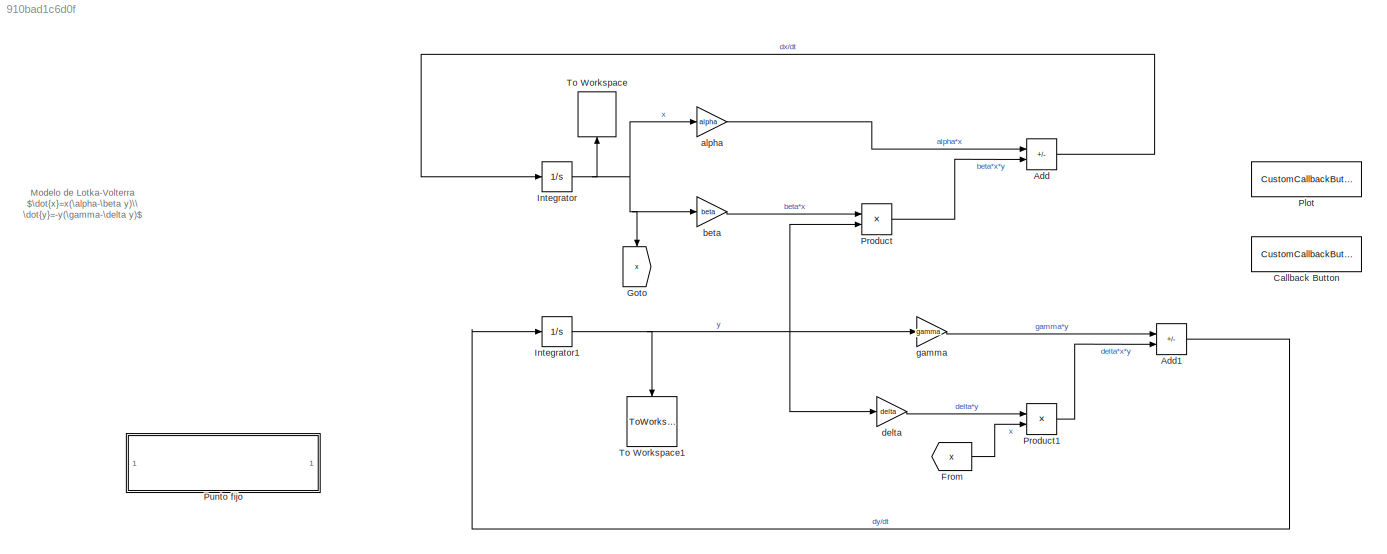
MODEL slx_910bad1c6d0f
KIND model
CONFIG AbsTol = auto
CONFIG EnableMultiTasking = off
CONFIG FixedStep = 0.01
CONFIG MaxStep = auto
CONFIG MinStep = auto
CONFIG RelTol = 1e-3
CONFIG SampleTimeConstraint = Unconstrained
CONFIG SolverName = ode4
CONFIG StartTime = 0.0
CONFIG StopTime = 50.0
WORKSPACE source: MATLAB code (in-file)
WORKSPACE alpha = 1
WORKSPACE beta = 1
WORKSPACE gamma = 1
WORKSPACE delta = 1
BLOCK [Sum] Add
  IconShape = rectangular
  Inputs = +-
BLOCK [Sum] Add1
  IconShape = rectangular
  Inputs = -+
BLOCK [CustomCallbackButton] Callback Button
  Configuration = {"components":[{"name":"BackgroundImageComponent","settings":{"image":{"size":[0,0],"src":"default","srcOrientation":"Right"},"position":[0,0,1,1]}},{"name":"ButtonStateComponent","settings":{"buttonType":"momentary","clickFcn":"x = out.x;\ny = out.y;\nt = out.tout;\n\nfigure\nplot(t, x, 'linewidth', 2)\nhold on\ngrid on\nplot(t, y, 'linewidth', 2)\nxlabel('Tiempo')\nylabel('Población')\nlegend('x...<+2236ch>
  CustomBackgroundColor = {"color":[0.9568627451,0.9568627451,0.9568627451],"show":true}
BLOCK [From] From
  GotoTag = x
BLOCK [Goto] Goto
  GotoTag = x
  NameLocation = left
BLOCK [Integrator] Integrator
  InitialCondition = linspace(0,2,10)
BLOCK [Integrator] Integrator1
  InitialCondition = 0.2
BLOCK [CustomCallbackButton] Plot
  Configuration = {"components":[{"name":"BackgroundImageComponent","settings":{"image":{"size":[0,0],"src":"default","srcOrientation":"Right"},"position":[0,0,1,1]}},{"name":"ButtonStateComponent","settings":{"buttonType":"momentary","clickFcn":"x = out.x;\ny = out.y;\nx_centro = out.x_centro;\ny_centro = out.y_centro;\n\n% Trayectorias en el espacio de fases\nfigure\nplot(x, y, 'linewidth', 2)\nhold on\n\n% Ubica...<+2409ch>
  CustomBackgroundColor = {"color":[0.9568627451,0.9568627451,0.9568627451],"show":true}
BLOCK [Product] Product
BLOCK [Product] Product1
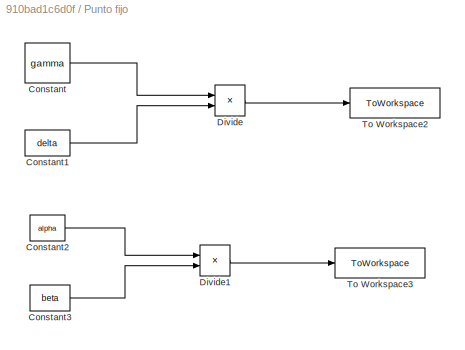
BLOCK [SubSystem] Punto fijo
BLOCK [Constant] Punto fijo/Constant
  Value = gamma
BLOCK [Constant] Punto fijo/Constant1
  Value = delta
BLOCK [Constant] Punto fijo/Constant2
  Value = alpha
BLOCK [Constant] Punto fijo/Constant3
  Value = beta
BLOCK [Product] Punto fijo/Divide
  Inputs = */
BLOCK [Product] Punto fijo/Divide1
  Inputs = */
BLOCK [ToWorkspace] Punto fijo/To Workspace2
  FixptAsFi = on
  MaxDataPoints = inf
  SampleTime = -1
  VariableName = x_centro
BLOCK [ToWorkspace] Punto fijo/To Workspace3
  FixptAsFi = on
  MaxDataPoints = inf
  SampleTime = -1
  VariableName = y_centro
BLOCK [ToWorkspace] To Workspace
  FixptAsFi = on
  MaxDataPoints = inf
  NameLocation = right
  SampleTime = -1
  VariableName = x
BLOCK [ToWorkspace] To Workspace1
  FixptAsFi = on
  MaxDataPoints = inf
  NameLocation = left
  SampleTime = -1
  VariableName = y
BLOCK [Gain] alpha
  Gain = alpha
BLOCK [Gain] beta
  Gain = beta
BLOCK [Gain] delta
  Gain = delta
BLOCK [Gain] gamma
  Gain = gamma
ANNOTATION (root): Modelo de Lotka-Volterra $\dot{x}=x(\alpha-\beta y)\\ \dot{y}=-y(\gamma-\delta y)$
LINE Add1:1 -> Integrator1:1
LINE Add:1 -> Integrator:1
LINE From:1 -> Product1:2
NET Integrator1:1 -> Product:2, To Workspace1:1, delta:1, gamma:1
NET Integrator:1 -> Goto:1, To Workspace:1, alpha:1, beta:1
LINE Product1:1 -> Add1:2
LINE Product:1 -> Add:2
LINE Punto fijo/Constant1:1 -> Punto fijo/Divide:2
LINE Punto fijo/Constant2:1 -> Punto fijo/Divide1:1
LINE Punto fijo/Constant3:1 -> Punto fijo/Divide1:2
LINE Punto fijo/Constant:1 -> Punto fijo/Divide:1
LINE Punto fijo/Divide1:1 -> Punto fijo/To Workspace3:1
LINE Punto fijo/Divide:1 -> Punto fijo/To Workspace2:1
LINE alpha:1 -> Add:1
LINE beta:1 -> Product:1
LINE delta:1 -> Product1:1
LINE gamma:1 -> Add1:1
note: NET lines group one-source signal fan-out (src -> all destinations, sorted); 1:1 wires keep LINE
